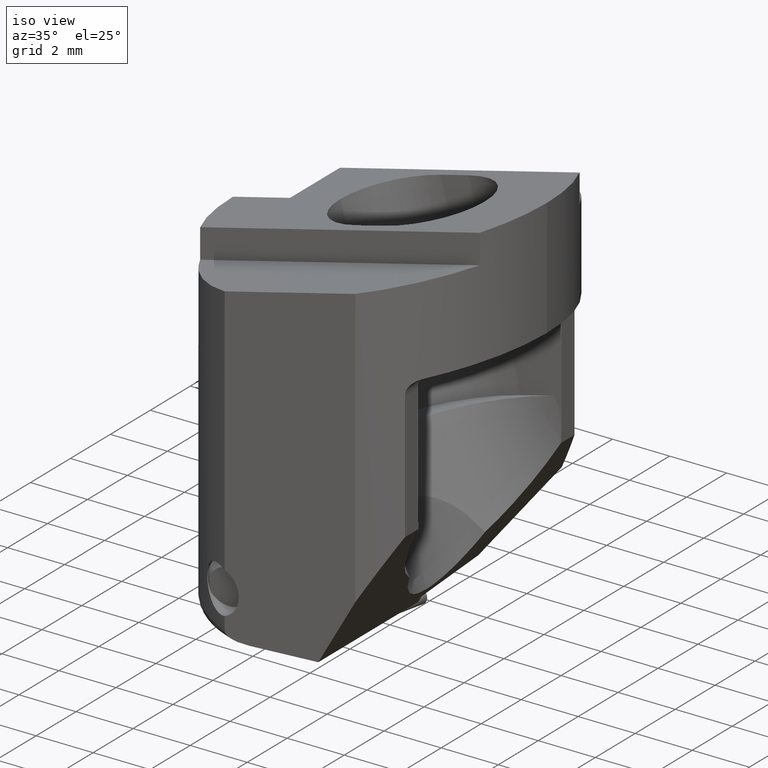
[diagram: clean part render]
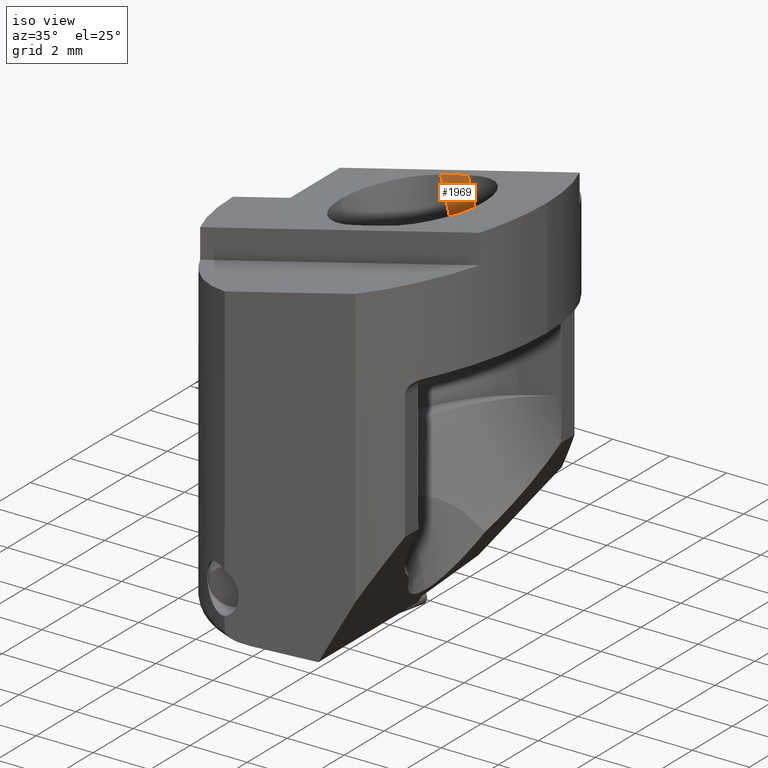
[diagram: same view with one face highlighted and labeled with its STEP entity id]
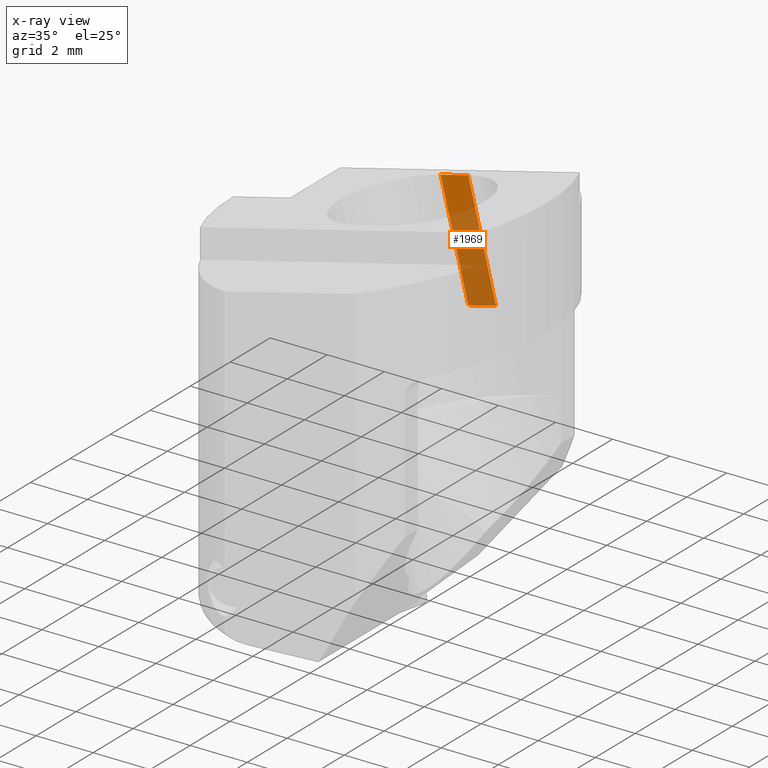
[diagram: x-ray of the same camera — body ghosted, the highlighted face saturated]
A machine part, iso view. The second image highlights one B-rep face of the part: STEP entity #1969.
The next image is the same camera in x-ray: the body ghosted, the highlighted face saturated — about 72% of this face is hidden behind the body in this view.
In plain terms, the highlighted planar face has unit normal (0, 1, 0).
Its self-contained STEP definition (entity closure, byte-faithful):
#951=EDGE_CURVE('NONE',#1277,#1281,#2537,.F.);
#969=VERTEX_POINT('NONE',#2557);
#1277=VERTEX_POINT('NONE',#2890);
#1281=VERTEX_POINT('NONE',#2894);
#1471=EDGE_CURVE('NONE',#1827,#1277,#3106,.F.);
#1827=VERTEX_POINT('NONE',#3496);
#1969=ADVANCED_FACE('NONE',(#3655),#3656,.F.);
#2129=EDGE_CURVE('NONE',#969,#1281,#3839,.F.);
#2349=EDGE_CURVE('NONE',#969,#1827,#4087,.T.);
#2537=LINE('',#4332,#4333);
#2557=CARTESIAN_POINT('',(1.27660544682206,2.1,-5.17546504656218));
#2890=CARTESIAN_POINT('',(1.27921359069941,2.1,-1.05236024585852));
#2894=CARTESIAN_POINT('',(0.308917864423413,2.1,-1.29428214145818));
#3106=LINE('',#5150,#5151);
#3496=CARTESIAN_POINT('',(2.24690117309805,2.1,-4.93354315096252));
#3655=FACE_OUTER_BOUND('',#5918,.T.);
#3656=PLANE('',#5919);
#3839=LINE('',#6918,#6919);
#4087=LINE('',#7305,#7306);
#4332=CARTESIAN_POINT('',(2.90445893221171,2.1,-0.647141070729093));
#4333=VECTOR('',#7495,1.0);
#5150=CARTESIAN_POINT('',(2.48882306869771,2.1,-5.90383887723852));
#5151=VECTOR('',#8150,1.0);
#5918=EDGE_LOOP('',(#8794,#8795,#8796,#8797));
#5919=AXIS2_PLACEMENT_3D('',#8798,#8799,#8800);
#6918=CARTESIAN_POINT('',(1.51852734242172,2.1,-6.14576077283818));
#6919=VECTOR('',#9076,1.0);
#7305=CARTESIAN_POINT('',(1.27660544682206,2.1,-5.17546504656218));
#7306=VECTOR('',#9395,1.0);
#7495=DIRECTION('',(0.970295726275998,0.0,0.241921895599661));
#8150=DIRECTION('',(0.241921895599661,0.0,-0.970295726275998));
#8794=ORIENTED_EDGE('',*,*,#2129,.F.);
#8795=ORIENTED_EDGE('',*,*,#2349,.T.);
#8796=ORIENTED_EDGE('',*,*,#1471,.T.);
#8797=ORIENTED_EDGE('',*,*,#951,.T.);
#8798=CARTESIAN_POINT('',(1.51852734242172,2.1,-6.14576077283818));
#8799=DIRECTION('',(0.0,1.0,0.0));
#8800=DIRECTION('',(1.0,0.0,-1.22464679914735E-016));
#9076=DIRECTION('',(0.241921895599661,0.0,-0.970295726275998));
#9395=DIRECTION('',(0.970295726275998,0.0,0.241921895599661));